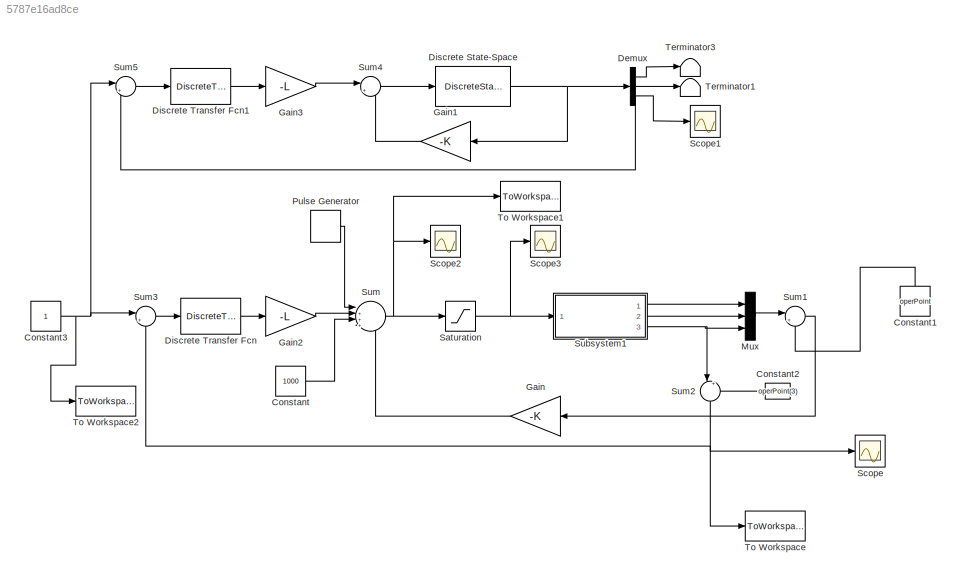
MODEL slx_5787e16ad8ce
KIND model
CONFIG AbsTol = auto
CONFIG EnableMultiTasking = off
CONFIG FixedStep = 0.01
CONFIG MaxStep = auto
CONFIG MinStep = auto
CONFIG RelTol = 1e-3
CONFIG SampleTimeConstraint = Unconstrained
CONFIG Solver = ode4
CONFIG SolverName = ode4
CONFIG StartTime = 0.0
CONFIG StopTime = 100
BLOCK [Constant] Constant
  Value = 1000
BLOCK [Constant] Constant1
  Value = operPoint
BLOCK [Constant] Constant2
  Value = operPoint(3)
BLOCK [Constant] Constant3
BLOCK [Demux] Demux
  DisplayOption = bar
  Outputs = 3
  Ports = [1, 3]
BLOCK [DiscreteStateSpace] Discrete State-Space
  A = systemD.A
  B = systemD.B
  C = eye(3)
  D = [0,0,0]'
  InitialCondition = [0,0,0]
BLOCK [DiscreteTransferFcn] Discrete Transfer Fcn
  Denominator = [1 -1]
  InputPortMap = u0
  Ports = [1, 1]
  SampleTime = T
BLOCK [DiscreteTransferFcn] Discrete Transfer Fcn1
  Denominator = [1 -1]
  InputPortMap = u0
  Ports = [1, 1]
  SampleTime = T
BLOCK [Gain] Gain
  Gain = -K
  Multiplication = Matrix(K*u) (u vector)
  OutDataTypeStr = Inherit: Inherit via internal rule
  ParamDataTypeStr = Inherit: Inherit via internal rule
  SaturateOnIntegerOverflow = off
BLOCK [Gain] Gain1
  Gain = -K
  Multiplication = Matrix(K*u) (u vector)
  OutDataTypeStr = Inherit: Inherit via internal rule
  ParamDataTypeStr = Inherit: Inherit via internal rule
  SaturateOnIntegerOverflow = off
BLOCK [Gain] Gain2
  Gain = -L
  Multiplication = Matrix(K*u) (u vector)
  OutDataTypeStr = Inherit: Inherit via internal rule
  ParamDataTypeStr = Inherit: Inherit via internal rule
  SaturateOnIntegerOverflow = off
BLOCK [Gain] Gain3
  Gain = -L
  Multiplication = Matrix(K*u) (u vector)
  OutDataTypeStr = Inherit: Inherit via internal rule
  ParamDataTypeStr = Inherit: Inherit via internal rule
  SaturateOnIntegerOverflow = off
BLOCK [Mux] Mux
  DisplayOption = bar
  Inputs = 3
  Ports = [3, 1]
BLOCK [DiscretePulseGenerator] Pulse Generator
  Amplitude = 0
  Period = 10
  Ports = [0, 1]
  PulseType = Time based
  PulseWidth = 5
BLOCK [Saturate] Saturation
  InputPortMap = u0
  LowerLimit = 0
  Ports = [1, 1]
  UpperLimit = 1500
BLOCK [Scope] Scope
  Floating = off
  NumInputPorts = 1
  Ports = [1]
  ScopeSpecificationString = Simulink.scopes.TimeScopeBlockCfg('CurrentConfiguration', extmgr.ConfigurationSet(extmgr.Configuration('Core','General UI',true),extmgr.Configuration('Core','Source UI',true),extmgr.Configuration('Sources','WiredSimulink',true),extmgr.Configuration('Visuals','Time Domain',true,'SerializedDisplays',{struct('MinYLimReal','-1.43703','MaxYLimReal','2.94064','YLabelReal','','MinYLimMag','0.00000','MaxY...<+1351ch>
BLOCK [Scope] Scope1
  Floating = off
  NumInputPorts = 1
  Ports = [1]
  ScopeSpecificationString = Simulink.scopes.TimeScopeBlockCfg('CurrentConfiguration', extmgr.ConfigurationSet(extmgr.Configuration('Core','General UI',true),extmgr.Configuration('Core','Source UI',true),extmgr.Configuration('Sources','WiredSimulink',true,'DataLoggingVariableName','ScopeData1'),extmgr.Configuration('Visuals','Time Domain',true,'SerializedDisplays',{struct('MinYLimReal','-1.00000','MaxYLimReal','1.00000','YLab...<+1396ch>
BLOCK [Scope] Scope2
  Floating = off
  NumInputPorts = 1
  Ports = [1]
  ScopeSpecificationString = Simulink.scopes.TimeScopeBlockCfg('CurrentConfiguration', extmgr.ConfigurationSet(extmgr.Configuration('Core','General UI',true),extmgr.Configuration('Core','Source UI',true),extmgr.Configuration('Sources','WiredSimulink',true,'DataLoggingVariableName','ScopeData2'),extmgr.Configuration('Visuals','Time Domain',true,'SerializedDisplays',{struct('MinYLimReal','499.24479','MaxYLimReal','1525.28461','...<+1409ch>
BLOCK [Scope] Scope3
  Floating = off
  NumInputPorts = 1
  Ports = [1]
  ScopeSpecificationString = Simulink.scopes.TimeScopeBlockCfg('CurrentConfiguration', extmgr.ConfigurationSet(extmgr.Configuration('Core','General UI',true),extmgr.Configuration('Core','Source UI',true),extmgr.Configuration('Sources','WiredSimulink',true,'DataLoggingVariableName','ScopeData3'),extmgr.Configuration('Visuals','Time Domain',true,'SerializedDisplays',{struct('MinYLimReal','957.94426','MaxYLimReal','1378.50167','...<+1458ch>
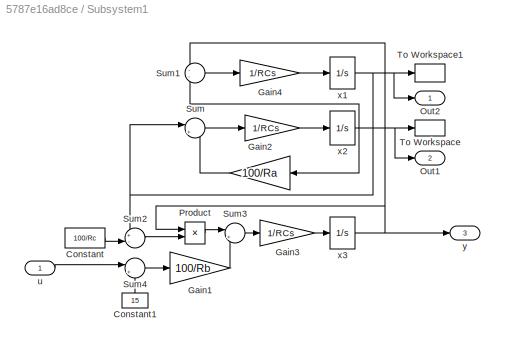
BLOCK [SubSystem] Subsystem1
  Ports = [1, 3]
  RequestExecContextInheritance = off
BLOCK [Gain] Subsystem1/ 
  Gain = 1/RCs
  OutDataTypeStr = Inherit: Inherit via internal rule
  ParamDataTypeStr = Inherit: Inherit via internal rule
  SaturateOnIntegerOverflow = off
BLOCK [Constant] Subsystem1/Constant
  Value = 100/Rc
BLOCK [Constant] Subsystem1/Constant1
  Value = 15
BLOCK [Gain] Subsystem1/Gain1
  Gain = 100/Rb
  OutDataTypeStr = Inherit: Inherit via internal rule
  ParamDataTypeStr = Inherit: Inherit via internal rule
  SaturateOnIntegerOverflow = off
BLOCK [Gain] Subsystem1/Gain2
  Gain = 100/Ra
  OutDataTypeStr = Inherit: Inherit via internal rule
  ParamDataTypeStr = Inherit: Inherit via internal rule
  SaturateOnIntegerOverflow = off
BLOCK [Gain] Subsystem1/Gain3
  Gain = 1/RCs
  OutDataTypeStr = Inherit: Inherit via internal rule
  ParamDataTypeStr = Inherit: Inherit via internal rule
  SaturateOnIntegerOverflow = off
BLOCK [Gain] Subsystem1/Gain4
  Gain = 1/RCs
  OutDataTypeStr = Inherit: Inherit via internal rule
  ParamDataTypeStr = Inherit: Inherit via internal rule
  SaturateOnIntegerOverflow = off
BLOCK [Outport] Subsystem1/Out1
  IconDisplay = Port number
  Port = 2
BLOCK [Outport] Subsystem1/Out2
  IconDisplay = Port number
BLOCK [Product] Subsystem1/Product
  InputSameDT = off
  OutDataTypeStr = Inherit: Inherit via internal rule
  Ports = [2, 1]
  RndMeth = Floor
  SaturateOnIntegerOverflow = off
BLOCK [Sum] Subsystem1/Sum
  IconShape = round
  InputSameDT = off
  Inputs = |++
  OutDataTypeStr = Inherit: Inherit via internal rule
  Ports = [2, 1]
  SaturateOnIntegerOverflow = off
BLOCK [Sum] Subsystem1/Sum1
  IconShape = round
  InputSameDT = off
  Inputs = --
  OutDataTypeStr = Inherit: Inherit via internal rule
  Ports = [2, 1]
  SaturateOnIntegerOverflow = off
BLOCK [Sum] Subsystem1/Sum2
  IconShape = round
  InputSameDT = off
  Inputs = +-|
  OutDataTypeStr = Inherit: Inherit via internal rule
  Ports = [2, 1]
  SaturateOnIntegerOverflow = off
BLOCK [Sum] Subsystem1/Sum3
  IconShape = round
  InputSameDT = off
  Inputs = |++
  OutDataTypeStr = Inherit: Inherit via internal rule
  Ports = [2, 1]
  SaturateOnIntegerOverflow = off
BLOCK [Sum] Subsystem1/Sum4
  IconShape = round
  InputSameDT = off
  Inputs = |++
  OutDataTypeStr = Inherit: Inherit via internal rule
  Ports = [2, 1]
  SaturateOnIntegerOverflow = off
BLOCK [ToWorkspace] Subsystem1/To Workspace
  FixptAsFi = on
  MaxDataPoints = inf
  Ports = [1]
  SampleTime = -1
  VariableName = x2
BLOCK [ToWorkspace] Subsystem1/To Workspace1
  FixptAsFi = on
  MaxDataPoints = inf
  Ports = [1]
  SampleTime = -1
  VariableName = x1
BLOCK [Inport] Subsystem1/u
  IconDisplay = Port number
BLOCK [Integrator] Subsystem1/x1
  InitialCondition = x10
  Ports = [1, 1]
BLOCK [Integrator] Subsystem1/x2
  InitialCondition = x20
  Ports = [1, 1]
BLOCK [Integrator] Subsystem1/x3 
  InitialCondition = y0
  Ports = [1, 1]
BLOCK [Outport] Subsystem1/y 
  IconDisplay = Port number
  Port = 3
BLOCK [Sum] Sum
  IconShape = round
  InputSameDT = off
  Inputs = |++++
  OutDataTypeStr = Inherit: Inherit via internal rule
  Ports = [4, 1]
  SaturateOnIntegerOverflow = off
BLOCK [Sum] Sum1
  IconShape = round
  InputSameDT = off
  Inputs = |+-
  OutDataTypeStr = Inherit: Inherit via internal rule
  Ports = [2, 1]
  SaturateOnIntegerOverflow = off
BLOCK [Sum] Sum2
  IconShape = round
  InputSameDT = off
  Inputs = |+-
  OutDataTypeStr = Inherit: Inherit via internal rule
  Ports = [2, 1]
  SaturateOnIntegerOverflow = off
BLOCK [Sum] Sum3
  IconShape = round
  InputSameDT = off
  Inputs = |+-
  OutDataTypeStr = Inherit: Inherit via internal rule
  Ports = [2, 1]
  SaturateOnIntegerOverflow = off
BLOCK [Sum] Sum4
  IconShape = round
  InputSameDT = off
  Inputs = |++
  OutDataTypeStr = Inherit: Inherit via internal rule
  Ports = [2, 1]
  SaturateOnIntegerOverflow = off
BLOCK [Sum] Sum5
  IconShape = round
  InputSameDT = off
  Inputs = |+-
  OutDataTypeStr = Inherit: Inherit via internal rule
  Ports = [2, 1]
  SaturateOnIntegerOverflow = off
BLOCK [Terminator] Terminator1
BLOCK [Terminator] Terminator3
BLOCK [ToWorkspace] To Workspace
  FixptAsFi = on
  MaxDataPoints = inf
  Ports = [1]
  SampleTime = -1
  VariableName = y
BLOCK [ToWorkspace] To Workspace1
  FixptAsFi = on
  MaxDataPoints = inf
  Ports = [1]
  SampleTime = -1
  VariableName = cont
BLOCK [ToWorkspace] To Workspace2
  FixptAsFi = on
  MaxDataPoints = inf
  Ports = [1]
  SampleTime = -1
  VariableName = us
LINE Constant1:1 -> Sum1:2
LINE Constant2:1 -> Sum2:2
NET Constant3:1 -> Sum3:1, Sum5:1, To Workspace2:1
LINE Constant:1 -> Sum:3
LINE Demux:1 -> Terminator3:1
LINE Demux:2 -> Terminator1:1
NET Demux:3 -> Scope1:1, Sum5:2
NET Discrete State-Space:1 -> Demux:1, Gain1:1
LINE Discrete Transfer Fcn1:1 -> Gain3:1
LINE Discrete Transfer Fcn:1 -> Gain2:1
LINE Gain1:1 -> Sum4:2
LINE Gain2:1 -> Sum:2
LINE Gain3:1 -> Sum4:1
LINE Gain:1 -> Sum:4
LINE Mux:1 -> Sum1:1
LINE Pulse Generator:1 -> Sum:1
NET Saturation:1 -> Scope3:1, Subsystem1:1
LINE Subsystem1/ :1 -> Subsystem1/x2:1
LINE Subsystem1/Constant1:1 -> Subsystem1/Sum4:2
LINE Subsystem1/Constant:1 -> Subsystem1/Sum2:2
LINE Subsystem1/Gain1:1 -> Subsystem1/Sum3:2
LINE Subsystem1/Gain2:1 -> Subsystem1/Sum:2
LINE Subsystem1/Gain3:1 -> Subsystem1/x3 :1
LINE Subsystem1/Gain4:1 -> Subsystem1/x1:1
LINE Subsystem1/Product:1 -> Subsystem1/Sum3:1
LINE Subsystem1/Sum1:1 -> Subsystem1/Gain4:1
LINE Subsystem1/Sum2:1 -> Subsystem1/Product:2
LINE Subsystem1/Sum3:1 -> Subsystem1/Gain3:1
LINE Subsystem1/Sum4:1 -> Subsystem1/Gain1:1
LINE Subsystem1/Sum:1 -> Subsystem1/ :1
LINE Subsystem1/u:1 -> Subsystem1/Sum4:1
NET Subsystem1/x1:1 -> Subsystem1/Out2:1, Subsystem1/Sum2:1, Subsystem1/Sum:1, Subsystem1/To Workspace1:1
NET Subsystem1/x2:1 -> Subsystem1/Gain2:1, Subsystem1/Out1:1, Subsystem1/Sum1:2, Subsystem1/To Workspace:1
NET Subsystem1/x3 :1 -> Subsystem1/Product:1, Subsystem1/Sum1:1, Subsystem1/y :1
LINE Subsystem1:1 -> Mux:1
LINE Subsystem1:2 -> Mux:2
NET Subsystem1:3 -> Mux:3, Sum2:1
LINE Sum1:1 -> Gain:1
NET Sum2:1 -> Scope:1, Sum3:2, To Workspace:1
LINE Sum3:1 -> Discrete Transfer Fcn:1
LINE Sum4:1 -> Discrete State-Space:1
LINE Sum5:1 -> Discrete Transfer Fcn1:1
NET Sum:1 -> Saturation:1, Scope2:1, To Workspace1:1
note: NET lines group one-source signal fan-out (src -> all destinations, sorted); 1:1 wires keep LINE
